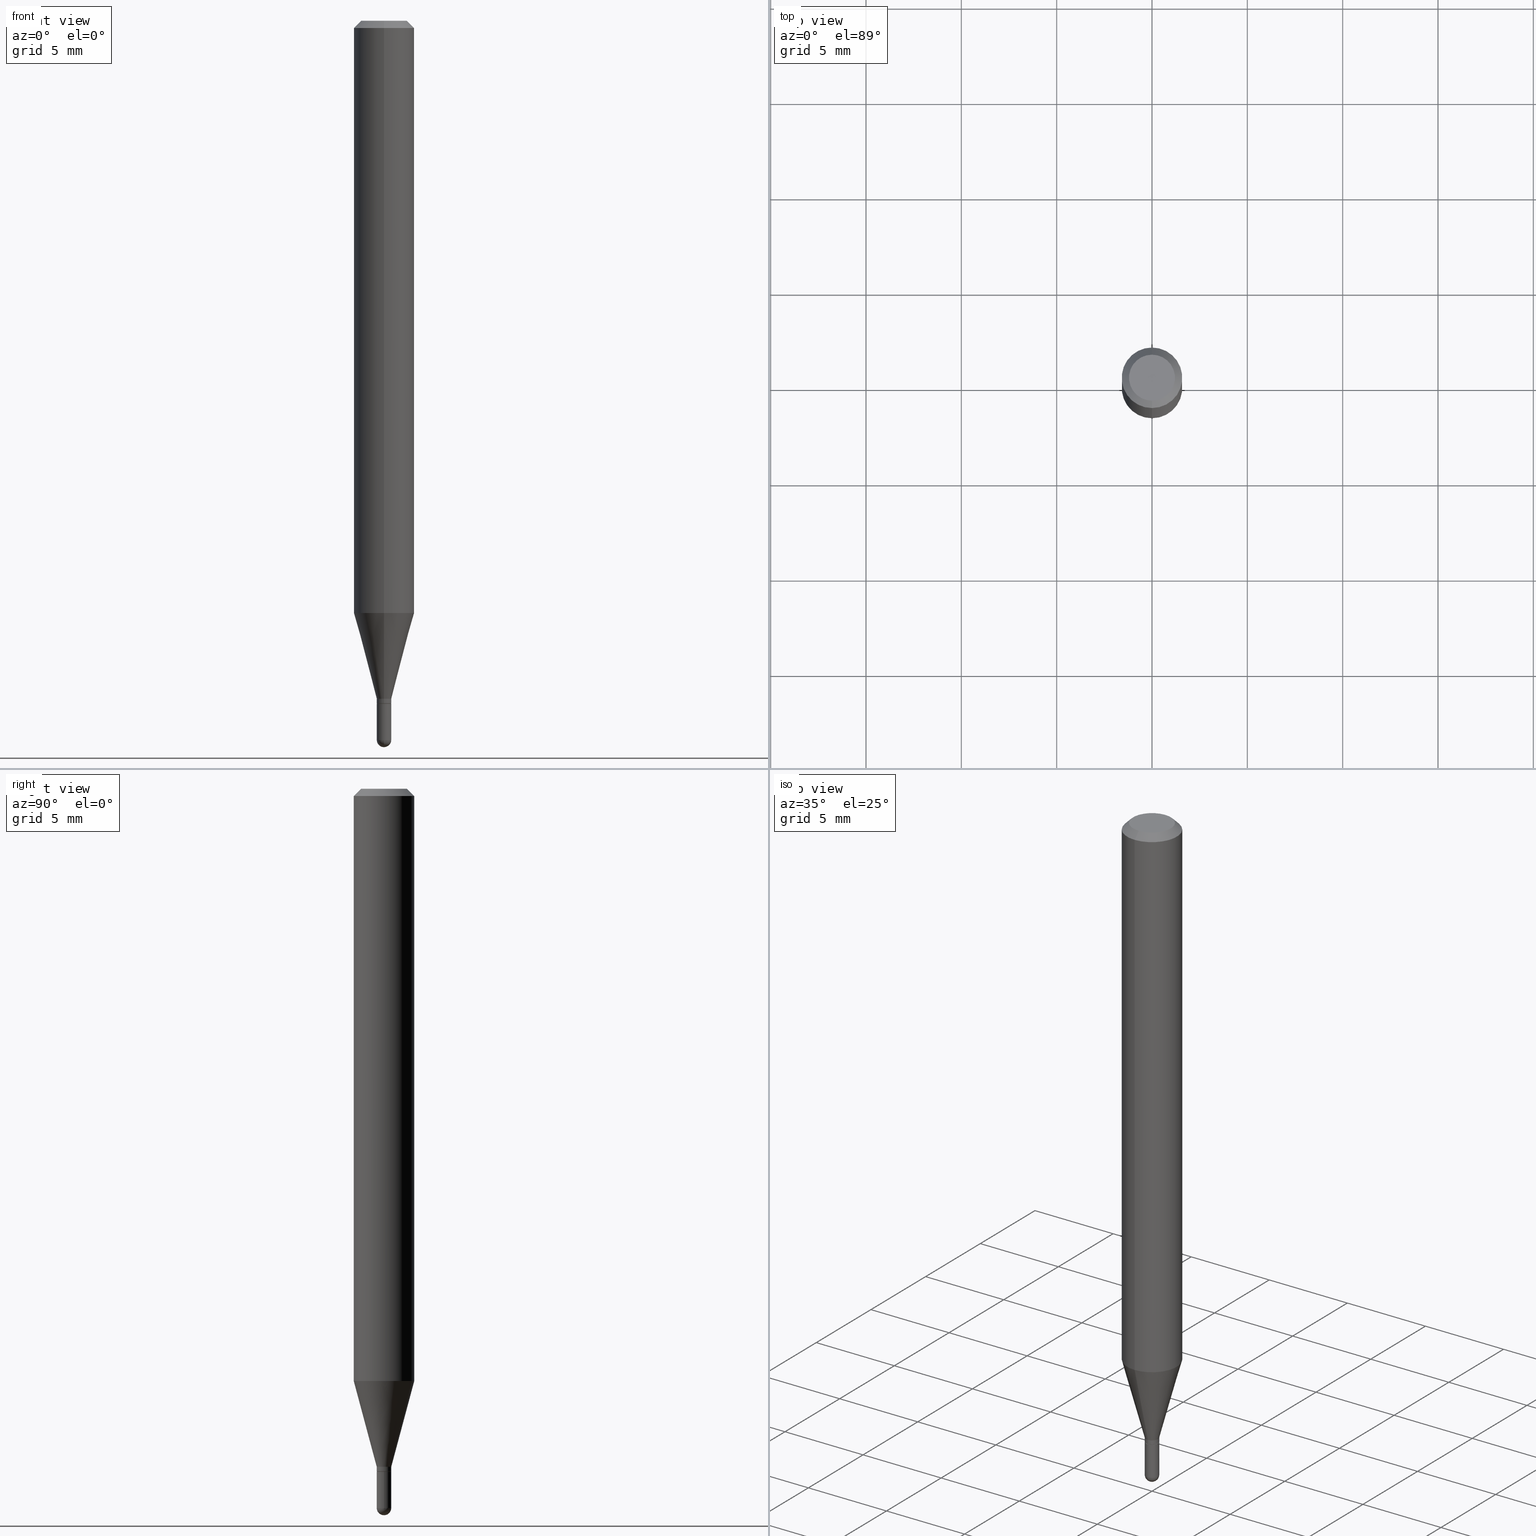
[diagram: canonical four-view strip — front | top / right | iso, engineering-drawing reading convention]
A machine part, canonical four-view strip (front | top / right | iso — engineering-drawing reading convention). The complete STEP part file that produces these views, byte-faithful:
ISO-10303-21;
HEADER;
FILE_DESCRIPTION (( 'STEP AP203' ),
    '1' );
FILE_NAME ('00907.STEP',
    '2024-03-07T18:48:46',
    ( '' ),
    ( '' ),
    'SwSTEP 2.0',
    'SolidWorks 2023',
    '' );
FILE_SCHEMA (( 'CONFIG_CONTROL_DESIGN' ));
ENDSEC;

DATA;
#1 = EDGE_CURVE ( 'NONE', #212, #137, #240, .T. ) ;
#2 = DIRECTION ( 'NONE',  ( -2.445465743271904969E-29, 3.491485725109223553E-15, 1.000000000000000000 ) ) ;
#3 = CIRCLE ( 'NONE', #396, 0.01499999999999998904 ) ;
#4 = EDGE_CURVE ( 'NONE', #329, #88, #469, .T. ) ;
#5 = DIRECTION ( 'NONE',  ( 6.982962677686265922E-15, 1.000000000000000000, 0.000000000000000000 ) ) ;
#6 = DIRECTION ( 'NONE',  ( 6.982962677686265922E-15, 1.000000000000000000, -3.483106191921935554E-15 ) ) ;
#7 = CYLINDRICAL_SURFACE ( 'NONE', #313, 0.01500000000000000291 ) ;
#8 = EDGE_LOOP ( 'NONE', ( #338, #24, #200, #406 ) ) ;
#9 = ORIENTED_EDGE ( 'NONE', *, *, #111, .T. ) ;
#10 = AXIS2_PLACEMENT_3D ( 'NONE', #121, #468, #268 ) ;
#11 = AXIS2_PLACEMENT_3D ( 'NONE', #289, #331, #291 ) ;
#12 = CARTESIAN_POINT ( 'NONE',  ( -4.364351673553916201E-16, -0.06250000000000000000, 2.182178578193264721E-16 ) ) ;
#13 = EDGE_LOOP ( 'NONE', ( #486, #165, #384, #345, #257 ) ) ;
#14 = DIRECTION ( 'NONE',  ( -2.445465743271904969E-29, 3.491485725109223553E-15, 1.000000000000000000 ) ) ;
#15 = DATE_AND_TIME ( #295, #397 ) ;
#16 = EDGE_CURVE ( 'NONE', #374, #212, #372, .T. ) ;
#17 = ADVANCED_FACE ( 'NONE', ( #302 ), #457, .T. ) ;
#18 = AXIS2_PLACEMENT_3D ( 'NONE', #273, #432, #474 ) ;
#19 = PRODUCT_DEFINITION_FORMATION_WITH_SPECIFIED_SOURCE ( 'ANY', '', #215, .NOT_KNOWN. ) ;
#20 = CARTESIAN_POINT ( 'NONE',  ( 2.166709852925074545E-46, -3.093495193197750632E-32, -8.860111244192406634E-18 ) ) ;
#21 = DIRECTION ( 'NONE',  ( 1.839019923739601499E-15, 0.2588190451025251249, 0.9659258262890670910 ) ) ;
#22 = DATE_AND_TIME ( #373, #445 ) ;
#23 = CARTESIAN_POINT ( 'NONE',  ( 3.423652040580666788E-29, -4.888080015152912343E-15, -1.400000000000000133 ) ) ;
#24 = ORIENTED_EDGE ( 'NONE', *, *, #198, .T. ) ;
#25 = APPROVAL_STATUS ( 'not_yet_approved' ) ;
#26 = DIRECTION ( 'NONE',  ( -2.445465743271904688E-29, 3.491485725109223553E-15, 1.000000000000000000 ) ) ;
#27 = DIRECTION ( 'NONE',  ( -6.982962677686265922E-15, -1.000000000000000000, 3.491485725109223553E-15 ) ) ;
#28 = CIRCLE ( 'NONE', #427, 0.01450000000000000074 ) ;
#29 = CC_DESIGN_APPROVAL ( #327, ( #459 ) ) ;
#30 = COORDINATED_UNIVERSAL_TIME_OFFSET ( 5, 0, .BEHIND. ) ;
#31 = LINE ( 'NONE', #371, #453 ) ;
#32 = ORIENTED_EDGE ( 'NONE', *, *, #472, .F. ) ;
#33 = CARTESIAN_POINT ( 'NONE',  ( 3.423652040580666788E-29, -4.888080015152912343E-15, -1.400000000000000133 ) ) ;
#34 = EDGE_LOOP ( 'NONE', ( #114, #9 ) ) ;
#35 = EDGE_CURVE ( 'NONE', #204, #65, #106, .T. ) ;
#36 = CYLINDRICAL_SURFACE ( 'NONE', #70, 0.01500000000000000291 ) ;
#37 = AXIS2_PLACEMENT_3D ( 'NONE', #233, #38, #394 ) ;
#38 = DIRECTION ( 'NONE',  ( -2.445468806185136597E-29, 3.491481338843145583E-15, 1.000000000000000000 ) ) ;
#39 = DIRECTION ( 'NONE',  ( 1.000000000000000000, -6.982962677686266711E-15, 4.876176775795935793E-29 ) ) ;
#40 = CARTESIAN_POINT ( 'NONE',  ( -1.047444401652592020E-16, -0.01500000000000480983, -1.400000000000000133 ) ) ;
#41 = ADVANCED_FACE ( 'NONE', ( #391 ), #414, .T. ) ;
#42 = EDGE_CURVE ( 'NONE', #88, #137, #430, .T. ) ;
#43 = DIRECTION ( 'NONE',  ( -4.937700262164674260E-15, -0.7071067811865632269, 0.7071067811865319186 ) ) ;
#44 = PLANE ( 'NONE',  #202 ) ;
#45 = DIRECTION ( 'NONE',  ( 6.982962677686265922E-15, 1.000000000000000000, 0.000000000000000000 ) ) ;
#46 = AXIS2_PLACEMENT_3D ( 'NONE', #422, #64, #380 ) ;
#47 = DIRECTION ( 'NONE',  ( -2.445465743271904969E-29, 3.491485725109223553E-15, 1.000000000000000000 ) ) ;
#48 = VERTEX_POINT ( 'NONE', #228 ) ;
#49 = DIRECTION ( 'NONE',  ( -2.445468806185136597E-29, 3.491481338843145583E-15, 1.000000000000000000 ) ) ;
#50 = ORIENTED_EDGE ( 'NONE', *, *, #42, .F. ) ;
#51 = ADVANCED_FACE ( 'NONE', ( #316 ), #44, .F. ) ;
#52 = DIRECTION ( 'NONE',  ( -1.000000000000000000, 6.982962677686265922E-15, -4.883557194083112340E-29 ) ) ;
#53 = ORIENTED_EDGE ( 'NONE', *, *, #4, .F. ) ;
#54 = CONICAL_SURFACE ( 'NONE', #408, 0.06250000000000000000, 0.7853981633974483900 ) ;
#55 = CARTESIAN_POINT ( 'NONE',  ( 3.630238427751159335E-29, -5.186686758380792456E-15, -1.485000000000000098 ) ) ;
#56 = DIRECTION ( 'NONE',  ( -2.445465743271904969E-29, 3.491485725109223553E-15, 1.000000000000000000 ) ) ;
#57 = APPROVAL_DATE_TIME ( #22, #327 ) ;
#58 = CARTESIAN_POINT ( 'NONE',  ( 1.065814103640485875E-16, 0.01499999999999495313, -1.409500000000000419 ) ) ;
#59 = EDGE_LOOP ( 'NONE', ( #225, #214, #400, #420 ) ) ;
#60 = AXIS2_PLACEMENT_3D ( 'NONE', #417, #421, #134 ) ;
#61 = APPLICATION_PROTOCOL_DEFINITION ( 'international standard', 'config_control_design', 1994, #487 ) ;
#62 = DIRECTION ( 'NONE',  ( -6.982962677686265133E-15, -1.000000000000000000, 0.000000000000000000 ) ) ;
#63 = VERTEX_POINT ( 'NONE', #507 ) ;
#64 = DIRECTION ( 'NONE',  ( -2.445468806185136597E-29, 3.491481338843145583E-15, 1.000000000000000000 ) ) ;
#65 = VERTEX_POINT ( 'NONE', #58 ) ;
#66 = APPROVAL ( #376, 'UNSPECIFIED' ) ;
#67 = PERSON_AND_ORGANIZATION ( #404, #333 ) ;
#68 = DIRECTION ( 'NONE',  ( -2.445468806185136877E-29, 3.491481338843145188E-15, 1.000000000000000000 ) ) ;
#69 = ORIENTED_EDGE ( 'NONE', *, *, #489, .F. ) ;
#70 = AXIS2_PLACEMENT_3D ( 'NONE', #349, #435, #39 ) ;
#71 = LINE ( 'NONE', #494, #444 ) ;
#72 = ORIENTED_EDGE ( 'NONE', *, *, #16, .T. ) ;
#73 = EDGE_CURVE ( 'NONE', #492, #63, #136, .T. ) ;
#74 = DIRECTION ( 'NONE',  ( -2.445465743271904969E-29, 3.491485725109223553E-15, 1.000000000000000000 ) ) ;
#75 = DIRECTION ( 'NONE',  ( -1.807323732225331323E-15, -0.2588190451025183525, 0.9659258262890689783 ) ) ;
#76 = DIRECTION ( 'NONE',  ( -1.000000000000000000, 7.105427357601001070E-15, -4.926315508542082329E-29 ) ) ;
#77 = APPROVAL_PERSON_ORGANIZATION ( #67, #66, #175 ) ;
#78 = DIMENSIONAL_EXPONENTS ( 1.000000000000000000, 0.000000000000000000, 0.000000000000000000, 0.000000000000000000, 0.000000000000000000, 0.000000000000000000, 0.000000000000000000 ) ;
#79 = DIRECTION ( 'NONE',  ( -2.445468806185136597E-29, 3.491481338843145583E-15, 1.000000000000000000 ) ) ;
#80 = FACE_OUTER_BOUND ( 'NONE', #443, .T. ) ;
#81 = CARTESIAN_POINT ( 'NONE',  ( 3.631521177184928138E-29, -5.184849788182071492E-15, -1.485000000000000098 ) ) ;
#82 = CARTESIAN_POINT ( 'NONE',  ( 3.448106698013386597E-29, -4.922994872404006141E-15, -1.410000000000000364 ) ) ;
#83 = ORIENTED_EDGE ( 'NONE', *, *, #124, .F. ) ;
#84 = CIRCLE ( 'NONE', #250, 0.06250000000000000000 ) ;
#85 = DIRECTION ( 'NONE',  ( -4.851104656540964275E-15, -0.7071067811865500152, -0.7071067811865450192 ) ) ;
#86 = EDGE_LOOP ( 'NONE', ( #83, #103, #403, #235 ) ) ;
#87 = ORIENTED_EDGE ( 'NONE', *, *, #438, .F. ) ;
#88 = VERTEX_POINT ( 'NONE', #254 ) ;
#89 = CIRCLE ( 'NONE', #320, 0.04749999999999999362 ) ;
#90 = CC_DESIGN_DATE_AND_TIME_ASSIGNMENT ( #15, #490, ( #459 ) ) ;
#91 = SECURITY_CLASSIFICATION ( '', '', #303 ) ;
#92 = ADVANCED_FACE ( 'NONE', ( #448 ), #173, .T. ) ;
#93 = DIRECTION ( 'NONE',  ( -6.982962677686265922E-15, -1.000000000000000000, 3.483106191921935554E-15 ) ) ;
#94 = APPROVAL_DATE_TIME ( #220, #66 ) ;
#95 = CARTESIAN_POINT ( 'NONE',  ( 3.668198614907860150E-31, -5.237228587663838510E-17, -0.01500000000000000812 ) ) ;
#96 = CLOSED_SHELL ( 'NONE', ( #398, #354, #191, #17, #138, #171, #284, #41, #238, #237, #479, #92 ) ) ;
#97 = CIRCLE ( 'NONE', #351, 0.01500000000000000291 ) ;
#98 = ORIENTED_EDGE ( 'NONE', *, *, #318, .T. ) ;
#99 = PERSON_AND_ORGANIZATION ( #404, #333 ) ;
#100 = CC_DESIGN_PERSON_AND_ORGANIZATION_ASSIGNMENT ( #493, #343, ( #215 ) ) ;
#101 = FACE_OUTER_BOUND ( 'NONE', #8, .T. ) ;
#102 = EDGE_CURVE ( 'NONE', #342, #350, #31, .T. ) ;
#103 = ORIENTED_EDGE ( 'NONE', *, *, #1, .T. ) ;
#104 = APPROVAL_STATUS ( 'not_yet_approved' ) ;
#105 = FACE_OUTER_BOUND ( 'NONE', #34, .T. ) ;
#106 = LINE ( 'NONE', #223, #207 ) ;
#107 = PERSON_AND_ORGANIZATION_ROLE ( 'design_supplier' ) ;
#108 = CARTESIAN_POINT ( 'NONE',  ( 3.423652040580666788E-29, -4.888080015152912343E-15, -1.400000000000000133 ) ) ;
#109 = ORIENTED_EDGE ( 'NONE', *, *, #4, .T. ) ;
#110 = AXIS2_PLACEMENT_3D ( 'NONE', #506, #192, #429 ) ;
#111 = EDGE_CURVE ( 'NONE', #393, #365, #89, .T. ) ;
#112 = LOCAL_TIME ( 13, 48, 46.00000000000000000, #336 ) ;
#113 = FACE_OUTER_BOUND ( 'NONE', #59, .T. ) ;
#114 = ORIENTED_EDGE ( 'NONE', *, *, #157, .T. ) ;
#115 = SPHERICAL_SURFACE ( 'NONE', #153, 0.01499999999999998904 ) ;
#116 = ORIENTED_EDGE ( 'NONE', *, *, #433, .T. ) ;
#117 = CARTESIAN_POINT ( 'NONE',  ( 3.667561834560821335E-29, -5.238140493364078659E-15, -1.500000000000000222 ) ) ;
#118 = AXIS2_PLACEMENT_3D ( 'NONE', #23, #425, #334 ) ;
#119 = CIRCLE ( 'NONE', #180, 0.01499999999999992312 ) ;
#120 = CYLINDRICAL_SURFACE ( 'NONE', #10, 0.01499999999999992485 ) ;
#121 = CARTESIAN_POINT ( 'NONE',  ( 0.000000000000000000, 0.000000000000000000, 0.000000000000000000 ) ) ;
#122 = CARTESIAN_POINT ( 'NONE',  ( 4.364351673553919652E-16, 0.06249999999999995143, -0.01500000000000022669 ) ) ;
#123 = ORIENTED_EDGE ( 'NONE', *, *, #401, .F. ) ;
#124 = EDGE_CURVE ( 'NONE', #212, #297, #71, .T. ) ;
#125 = VECTOR ( 'NONE', #75, 39.37007874015748854 ) ;
#126 =( CONVERSION_BASED_UNIT ( 'INCH', #285 ) LENGTH_UNIT ( ) NAMED_UNIT ( #78 ) );
#127 = EDGE_LOOP ( 'NONE', ( #363, #72, #266, #50 ) ) ;
#128 = ORIENTED_EDGE ( 'NONE', *, *, #219, .F. ) ;
#129 = CC_DESIGN_PERSON_AND_ORGANIZATION_ASSIGNMENT ( #216, #262, ( #91 ) ) ;
#130 = ORIENTED_EDGE ( 'NONE', *, *, #409, .F. ) ;
#131 =( NAMED_UNIT ( * ) PLANE_ANGLE_UNIT ( ) SI_UNIT ( $, .RADIAN. ) );
#132 = VECTOR ( 'NONE', #341, 39.37007874015748143 ) ;
#133 = VECTOR ( 'NONE', #14, 39.37007874015748143 ) ;
#134 = DIRECTION ( 'NONE',  ( 1.000000000000000000, 0.000000000000000000, 0.000000000000000000 ) ) ;
#135 = CARTESIAN_POINT ( 'NONE',  ( 4.440892098500922971E-16, 0.06249999999999571176, -1.222727586640479203 ) ) ;
#136 = LINE ( 'NONE', #294, #132 ) ;
#137 = VERTEX_POINT ( 'NONE', #491 ) ;
#138 = ADVANCED_FACE ( 'NONE', ( #224 ), #209, .T. ) ;
#139 = APPROVAL_ROLE ( '' ) ;
#140 = CARTESIAN_POINT ( 'NONE',  ( 1.047444401653302611E-16, 0.01499999999999481089, -1.485000000000000098 ) ) ;
#141 = ORIENTED_EDGE ( 'NONE', *, *, #198, .F. ) ;
#142 = DIRECTION ( 'NONE',  ( -6.982962677686265922E-15, -1.000000000000000000, 3.491485725109223553E-15 ) ) ;
#143 = VERTEX_POINT ( 'NONE', #140 ) ;
#144 = DATE_AND_TIME ( #424, #370 ) ;
#145 = DIRECTION ( 'NONE',  ( 5.024295867788190974E-15, 0.7071067811865681119, 0.7071067811865270336 ) ) ;
#146 = CARTESIAN_POINT ( 'NONE',  ( -1.012529588264163675E-16, -0.01450000000000492388, -1.410000000000000364 ) ) ;
#147 = ORIENTED_EDGE ( 'NONE', *, *, #346, .F. ) ;
#148 = AXIS2_PLACEMENT_3D ( 'NONE', #218, #377, #27 ) ;
#149 = LOCAL_TIME ( 13, 48, 46.00000000000000000, #339 ) ;
#150 = LINE ( 'NONE', #478, #247 ) ;
#151 = CARTESIAN_POINT ( 'NONE',  ( 2.753353101070707689E-16, 0.01499999999999503640, -1.400000000000000133 ) ) ;
#152 = DIRECTION ( 'NONE',  ( -2.445468806185136597E-29, 3.491481338843145583E-15, 1.000000000000000000 ) ) ;
#153 = AXIS2_PLACEMENT_3D ( 'NONE', #239, #355, #45 ) ;
#154 = CARTESIAN_POINT ( 'NONE',  ( 3.840629472727447874E-16, 0.04749999999999999362, -1.747056831868805136E-16 ) ) ;
#155 = CARTESIAN_POINT ( 'NONE',  ( 1.047444401653284739E-16, 0.01499999999999507630, -1.410000000000000364 ) ) ;
#156 = DIRECTION ( 'NONE',  ( 1.000000000000000000, -6.982962677686266711E-15, 4.876176775795935793E-29 ) ) ;
#157 = EDGE_CURVE ( 'NONE', #365, #393, #210, .T. ) ;
#158 = SPHERICAL_SURFACE ( 'NONE', #168, 0.01499999999999998904 ) ;
#159 = ORIENTED_EDGE ( 'NONE', *, *, #157, .F. ) ;
#160 = AXIS2_PLACEMENT_3D ( 'NONE', #471, #511, #6 ) ;
#161 = CIRCLE ( 'NONE', #299, 0.01499999999999998904 ) ;
#162 = CARTESIAN_POINT ( 'NONE',  ( 0.000000000000000000, 0.000000000000000000, 0.000000000000000000 ) ) ;
#163 = ORIENTED_EDGE ( 'NONE', *, *, #219, .T. ) ;
#164 = FACE_OUTER_BOUND ( 'NONE', #269, .T. ) ;
#165 = ORIENTED_EDGE ( 'NONE', *, *, #73, .T. ) ;
#166 = VECTOR ( 'NONE', #21, 39.37007874015748854 ) ;
#167 = CIRCLE ( 'NONE', #18, 0.01499999999999999944 ) ;
#168 = AXIS2_PLACEMENT_3D ( 'NONE', #199, #52, #279 ) ;
#169 = CARTESIAN_POINT ( 'NONE',  ( 3.448106698013386597E-29, -4.922994872404006141E-15, -1.410000000000000364 ) ) ;
#170 = CARTESIAN_POINT ( 'NONE',  ( -1.047444401652934559E-16, -0.01499999999999992485, 5.237228587663808927E-17 ) ) ;
#171 = ADVANCED_FACE ( 'NONE', ( #101 ), #310, .T. ) ;
#172 = CALENDAR_DATE ( 2024, 7, 3 ) ;
#173 = CYLINDRICAL_SURFACE ( 'NONE', #415, 0.01499999999999992485 ) ;
#174 = CARTESIAN_POINT ( 'NONE',  ( 2.990138426482821198E-29, -4.269135914452482936E-15, -1.222727586640478759 ) ) ;
#175 = APPROVAL_ROLE ( '' ) ;
#176 = CARTESIAN_POINT ( 'NONE',  ( 3.448106698013386597E-29, -4.922994872404006141E-15, -1.410000000000000364 ) ) ;
#177 = VECTOR ( 'NONE', #179, 39.37007874015748143 ) ;
#178 = CIRCLE ( 'NONE', #46, 0.01500000000000000291 ) ;
#179 = DIRECTION ( 'NONE',  ( -2.445465743271904969E-29, 3.491485725109223553E-15, 1.000000000000000000 ) ) ;
#180 = AXIS2_PLACEMENT_3D ( 'NONE', #359, #399, #439 ) ;
#181 = EDGE_CURVE ( 'NONE', #244, #204, #28, .T. ) ;
#182 = CARTESIAN_POINT ( 'NONE',  ( 2.166709852925074545E-46, -3.093495193197750632E-32, -8.860111244192406634E-18 ) ) ;
#183 = EDGE_LOOP ( 'NONE', ( #290, #163, #499, #264, #441 ) ) ;
#184 = DIRECTION ( 'NONE',  ( -2.445465743271904969E-29, 3.491485725109223553E-15, 1.000000000000000000 ) ) ;
#185 = ORIENTED_EDGE ( 'NONE', *, *, #461, .T. ) ;
#186 = DESIGN_CONTEXT ( 'detailed design', #487, 'design' ) ;
#187 = LINE ( 'NONE', #146, #241 ) ;
#188 = CIRCLE ( 'NONE', #280, 0.01500000000000000291 ) ;
#189 = VECTOR ( 'NONE', #251, 39.37007874015748143 ) ;
#190 = DIRECTION ( 'NONE',  ( -2.445465743271904969E-29, 3.491485725109223553E-15, 1.000000000000000000 ) ) ;
#191 = ADVANCED_FACE ( 'NONE', ( #451 ), #54, .T. ) ;
#192 = DIRECTION ( 'NONE',  ( -2.445465743271904969E-29, 3.491485725109223553E-15, 1.000000000000000000 ) ) ;
#193 = CARTESIAN_POINT ( 'NONE',  ( 0.01500000000000000291, -5.158663678140747361E-15, -1.485000000000000098 ) ) ;
#194 = ORIENTED_EDGE ( 'NONE', *, *, #489, .T. ) ;
#195 = CIRCLE ( 'NONE', #496, 0.01499999999999992312 ) ;
#196 = VECTOR ( 'NONE', #85, 39.37007874015748143 ) ;
#197 = FACE_OUTER_BOUND ( 'NONE', #308, .T. ) ;
#198 = EDGE_CURVE ( 'NONE', #374, #88, #195, .T. ) ;
#199 = CARTESIAN_POINT ( 'NONE',  ( 3.630238427751159335E-29, -5.186686758380792456E-15, -1.485000000000000098 ) ) ;
#200 = ORIENTED_EDGE ( 'NONE', *, *, #42, .T. ) ;
#201 = ORIENTED_EDGE ( 'NONE', *, *, #260, .T. ) ;
#202 = AXIS2_PLACEMENT_3D ( 'NONE', #155, #352, #323 ) ;
#203 = DIRECTION ( 'NONE',  ( -2.445465743271904969E-29, 3.491485725109223553E-15, 1.000000000000000000 ) ) ;
#204 = VERTEX_POINT ( 'NONE', #259 ) ;
#205 = APPROVAL_PERSON_ORGANIZATION ( #298, #276, #139 ) ;
#206 = LINE ( 'NONE', #122, #189 ) ;
#207 = VECTOR ( 'NONE', #145, 39.37007874015748143 ) ;
#208 = DATE_TIME_ROLE ( 'classification_date' ) ;
#209 = CONICAL_SURFACE ( 'NONE', #118, 0.01499999999999992312, 0.2617993877991504625 ) ;
#210 = CIRCLE ( 'NONE', #488, 0.04749999999999999362 ) ;
#211 = CARTESIAN_POINT ( 'NONE',  ( 0.000000000000000000, 0.000000000000000000, 0.000000000000000000 ) ) ;
#212 = VERTEX_POINT ( 'NONE', #135 ) ;
#213 = APPROVAL_ROLE ( '' ) ;
#214 = ORIENTED_EDGE ( 'NONE', *, *, #35, .T. ) ;
#215 = PRODUCT ( '00907', '00907', '', ( #412 ) ) ;
#216 = PERSON_AND_ORGANIZATION ( #404, #333 ) ;
#217 = PLANE ( 'NONE',  #466 ) ;
#218 = CARTESIAN_POINT ( 'NONE',  ( 0.000000000000000000, 0.000000000000000000, 0.000000000000000000 ) ) ;
#219 = EDGE_CURVE ( 'NONE', #492, #245, #178, .T. ) ;
#220 = DATE_AND_TIME ( #497, #149 ) ;
#221 = DIRECTION ( 'NONE',  ( -2.445465743271904969E-29, 3.491485725109223553E-15, 1.000000000000000000 ) ) ;
#222 = CONICAL_SURFACE ( 'NONE', #231, 0.01450000000000000074, 0.7853981633974739252 ) ;
#223 = CARTESIAN_POINT ( 'NONE',  ( 1.030286966852489955E-16, 0.01449999999999507759, -1.410000000000000364 ) ) ;
#224 = FACE_OUTER_BOUND ( 'NONE', #127, .T. ) ;
#225 = ORIENTED_EDGE ( 'NONE', *, *, #181, .T. ) ;
#226 = DIRECTION ( 'NONE',  ( 1.000000000000000000, -6.982962677686266711E-15, 0.000000000000000000 ) ) ;
#227 = ORIENTED_EDGE ( 'NONE', *, *, #472, .T. ) ;
#228 = CARTESIAN_POINT ( 'NONE',  ( -4.364351673553912750E-16, -0.06250000000000005551, -0.01499999999999979128 ) ) ;
#229 = CC_DESIGN_PERSON_AND_ORGANIZATION_ASSIGNMENT ( #99, #258, ( #19 ) ) ;
#230 = DIRECTION ( 'NONE',  ( -7.105427357601001070E-15, -1.000000000000000000, 0.000000000000000000 ) ) ;
#231 = AXIS2_PLACEMENT_3D ( 'NONE', #319, #2, #272 ) ;
#232 = PRODUCT_RELATED_PRODUCT_CATEGORY ( 'detail', '', ( #215 ) ) ;
#233 = CARTESIAN_POINT ( 'NONE',  ( 3.448111016721043229E-29, -4.922988687768836490E-15, -1.410000000000000364 ) ) ;
#234 = DIRECTION ( 'NONE',  ( 1.000000000000000000, -6.982962677686266711E-15, 0.000000000000000000 ) ) ;
#235 = ORIENTED_EDGE ( 'NONE', *, *, #508, .F. ) ;
#236 = MANIFOLD_SOLID_BREP ( 'Body-Move/Copy2[2]', #96 ) ;
#237 = ADVANCED_FACE ( 'NONE', ( #304 ), #217, .F. ) ;
#238 = ADVANCED_FACE ( 'NONE', ( #105 ), #460, .F. ) ;
#239 = CARTESIAN_POINT ( 'NONE',  ( 3.630238427751159335E-29, -5.186686758380792456E-15, -1.485000000000000098 ) ) ;
#240 = CIRCLE ( 'NONE', #407, 0.06250000000000000000 ) ;
#241 = VECTOR ( 'NONE', #43, 39.37007874015748143 ) ;
#242 = DIRECTION ( 'NONE',  ( 1.000000000000000000, -6.982962677686266711E-15, 0.000000000000000000 ) ) ;
#243 = EDGE_LOOP ( 'NONE', ( #462, #116, #109, #141 ) ) ;
#244 = VERTEX_POINT ( 'NONE', #265 ) ;
#245 = VERTEX_POINT ( 'NONE', #434 ) ;
#246 = EDGE_CURVE ( 'NONE', #204, #244, #504, .T. ) ;
#247 = VECTOR ( 'NONE', #190, 39.37007874015748143 ) ;
#248 = FACE_OUTER_BOUND ( 'NONE', #183, .T. ) ;
#249 = ORIENTED_EDGE ( 'NONE', *, *, #508, .T. ) ;
#250 = AXIS2_PLACEMENT_3D ( 'NONE', #402, #56, #358 ) ;
#251 = DIRECTION ( 'NONE',  ( 4.937700262164548042E-15, 0.7071067811865451302, -0.7071067811865499042 ) ) ;
#252 = MANIFOLD_SOLID_BREP ( 'Body-Move/Copy2[1]', #395 ) ;
#253 = SHAPE_DEFINITION_REPRESENTATION ( #301, #288 ) ;
#254 = CARTESIAN_POINT ( 'NONE',  ( -1.047444401652592020E-16, -0.01500000000000480983, -1.400000000000000133 ) ) ;
#255 = PERSON_AND_ORGANIZATION ( #404, #333 ) ;
#256 = DIRECTION ( 'NONE',  ( 2.445465743271904969E-29, -3.491485725109223553E-15, -1.000000000000000000 ) ) ;
#257 = ORIENTED_EDGE ( 'NONE', *, *, #346, .T. ) ;
#258 = PERSON_AND_ORGANIZATION_ROLE ( 'creator' ) ;
#259 = CARTESIAN_POINT ( 'NONE',  ( 1.048050535246489641E-16, 0.01449999999999507759, -1.410000000000000364 ) ) ;
#260 = EDGE_CURVE ( 'NONE', #65, #374, #150, .T. ) ;
#261 = ORIENTED_EDGE ( 'NONE', *, *, #401, .T. ) ;
#262 = PERSON_AND_ORGANIZATION_ROLE ( 'classification_officer' ) ;
#263 = DIRECTION ( 'NONE',  ( -2.445465743271904969E-29, 3.491485725109223553E-15, 1.000000000000000000 ) ) ;
#264 = ORIENTED_EDGE ( 'NONE', *, *, #102, .T. ) ;
#265 = CARTESIAN_POINT ( 'NONE',  ( -1.012529588264163675E-16, -0.01450000000000492388, -1.410000000000000364 ) ) ;
#266 = ORIENTED_EDGE ( 'NONE', *, *, #292, .F. ) ;
#267 = AXIS2_PLACEMENT_3D ( 'NONE', #82, #47, #480 ) ;
#268 = DIRECTION ( 'NONE',  ( -6.982962677686265133E-15, -1.000000000000000000, 3.491485725109223553E-15 ) ) ;
#269 = EDGE_LOOP ( 'NONE', ( #386, #283, #503, #484 ) ) ;
#270 = CC_DESIGN_PERSON_AND_ORGANIZATION_ASSIGNMENT ( #255, #107, ( #19 ) ) ;
#271 = ADVANCED_FACE ( 'NONE', ( #278 ), #36, .T. ) ;
#272 = DIRECTION ( 'NONE',  ( -6.982962677686265922E-15, -1.000000000000000000, 0.000000000000000000 ) ) ;
#273 = CARTESIAN_POINT ( 'NONE',  ( 3.448111016721043229E-29, -4.922988687768836490E-15, -1.410000000000000364 ) ) ;
#274 = AXIS2_PLACEMENT_3D ( 'NONE', #33, #221, #413 ) ;
#275 = CARTESIAN_POINT ( 'NONE',  ( 3.448106698013386597E-29, -4.922994872404006141E-15, -1.410000000000000364 ) ) ;
#276 = APPROVAL ( #25, 'UNSPECIFIED' ) ;
#277 = EDGE_CURVE ( 'NONE', #245, #342, #97, .T. ) ;
#278 = FACE_OUTER_BOUND ( 'NONE', #13, .T. ) ;
#279 = DIRECTION ( 'NONE',  ( 6.982962677686265922E-15, 1.000000000000000000, 0.000000000000000000 ) ) ;
#280 = AXIS2_PLACEMENT_3D ( 'NONE', #509, #152, #226 ) ;
#281 = CC_DESIGN_SECURITY_CLASSIFICATION ( #91, ( #19 ) ) ;
#282 = DIRECTION ( 'NONE',  ( 1.000000000000000000, -6.982962677686265922E-15, 4.883557194083112340E-29 ) ) ;
#283 = ORIENTED_EDGE ( 'NONE', *, *, #246, .T. ) ;
#284 = ADVANCED_FACE ( 'NONE', ( #385 ), #315, .T. ) ;
#285 = LENGTH_MEASURE_WITH_UNIT ( LENGTH_MEASURE( 0.02539999999999999897 ), #482 );
#286 = EDGE_LOOP ( 'NONE', ( #426, #428 ) ) ;
#287 = EDGE_CURVE ( 'NONE', #244, #329, #187, .T. ) ;
#288 = ADVANCED_BREP_SHAPE_REPRESENTATION ( '00907', ( #252, #236, #60 ), #467 ) ;
#289 = CARTESIAN_POINT ( 'NONE',  ( 3.446883965141751027E-29, -4.921249129541451135E-15, -1.409500000000000419 ) ) ;
#290 = ORIENTED_EDGE ( 'NONE', *, *, #73, .F. ) ;
#291 = DIRECTION ( 'NONE',  ( -6.982962677686265133E-15, -1.000000000000000000, 0.000000000000000000 ) ) ;
#292 = EDGE_CURVE ( 'NONE', #137, #212, #388, .T. ) ;
#293 = PERSON_AND_ORGANIZATION ( #404, #333 ) ;
#294 = CARTESIAN_POINT ( 'NONE',  ( -0.01500000000000000291, 1.065814103640150486E-16, -7.378402635382359408E-31 ) ) ;
#295 = CALENDAR_DATE ( 2024, 7, 3 ) ;
#296 = DIRECTION ( 'NONE',  ( -2.445465743271904969E-29, 3.491485725109223553E-15, 1.000000000000000000 ) ) ;
#297 = VERTEX_POINT ( 'NONE', #387 ) ;
#298 = PERSON_AND_ORGANIZATION ( #404, #333 ) ;
#299 = AXIS2_PLACEMENT_3D ( 'NONE', #55, #282, #5 ) ;
#300 = DIRECTION ( 'NONE',  ( -2.445465743271904969E-29, 3.491485725109223553E-15, 1.000000000000000000 ) ) ;
#301 = PRODUCT_DEFINITION_SHAPE ( 'NONE', 'NONE',  #459 ) ;
#302 = FACE_OUTER_BOUND ( 'NONE', #305, .T. ) ;
#303 = SECURITY_CLASSIFICATION_LEVEL ( 'unclassified' ) ;
#304 = FACE_OUTER_BOUND ( 'NONE', #286, .T. ) ;
#305 = EDGE_LOOP ( 'NONE', ( #475, #452, #32, #481 ) ) ;
#306 = PERSON_AND_ORGANIZATION ( #404, #333 ) ;
#307 = DIRECTION ( 'NONE',  ( 2.445465743271904688E-29, -3.491485725109223553E-15, -1.000000000000000000 ) ) ;
#308 = EDGE_LOOP ( 'NONE', ( #98, #201, #87, #53 ) ) ;
#309 = DIRECTION ( 'NONE',  ( -6.982962677686265922E-15, -1.000000000000000000, 4.370956789862821150E-15 ) ) ;
#310 = CONICAL_SURFACE ( 'NONE', #274, 0.01499999999999992312, 0.2617993877991504625 ) ;
#311 = DIRECTION ( 'NONE',  ( -2.445465743271904969E-29, 3.491485725109223553E-15, 1.000000000000000000 ) ) ;
#312 = EDGE_CURVE ( 'NONE', #63, #350, #357, .T. ) ;
#313 = AXIS2_PLACEMENT_3D ( 'NONE', #162, #49, #156 ) ;
#314 = ADVANCED_FACE ( 'NONE', ( #80 ), #115, .T. ) ;
#315 = CYLINDRICAL_SURFACE ( 'NONE', #110, 0.06250000000000000000 ) ;
#316 = FACE_OUTER_BOUND ( 'NONE', #330, .T. ) ;
#317 = DIRECTION ( 'NONE',  ( -6.982962677686265133E-15, -1.000000000000000000, 0.000000000000000000 ) ) ;
#318 = EDGE_CURVE ( 'NONE', #329, #65, #369, .T. ) ;
#319 = CARTESIAN_POINT ( 'NONE',  ( 3.448106698013386597E-29, -4.922994872404006141E-15, -1.410000000000000364 ) ) ;
#320 = AXIS2_PLACEMENT_3D ( 'NONE', #20, #347, #500 ) ;
#321 = CC_DESIGN_APPROVAL ( #276, ( #19 ) ) ;
#322 = CARTESIAN_POINT ( 'NONE',  ( -3.773273898774340269E-16, -0.04749999999999999362, 1.569854606984956973E-16 ) ) ;
#323 = DIRECTION ( 'NONE',  ( -1.000000000000000000, 6.982962677686265922E-15, -4.876176775795935793E-29 ) ) ;
#324 = CARTESIAN_POINT ( 'NONE',  ( -4.287811248607203282E-16, -0.06250000000000005551, -0.01499999999999979128 ) ) ;
#325 = LINE ( 'NONE', #324, #196 ) ;
#326 = ORIENTED_EDGE ( 'NONE', *, *, #375, .T. ) ;
#327 = APPROVAL ( #104, 'UNSPECIFIED' ) ;
#328 = DIRECTION ( 'NONE',  ( -2.445468806185136597E-29, 3.491481338843145583E-15, 1.000000000000000000 ) ) ;
#329 = VERTEX_POINT ( 'NONE', #502 ) ;
#330 = EDGE_LOOP ( 'NONE', ( #483, #381 ) ) ;
#331 = DIRECTION ( 'NONE',  ( -2.445465743271904969E-29, 3.491485725109223553E-15, 1.000000000000000000 ) ) ;
#332 = AXIS2_PLACEMENT_3D ( 'NONE', #344, #307, #464 ) ;
#333 = ORGANIZATION ( 'UNSPECIFIED', 'UNSPECIFIED', '' ) ;
#334 = DIRECTION ( 'NONE',  ( -6.982962677686265133E-15, -1.000000000000000000, 0.000000000000000000 ) ) ;
#335 = ORIENTED_EDGE ( 'NONE', *, *, #375, .F. ) ;
#336 = COORDINATED_UNIVERSAL_TIME_OFFSET ( 5, 0, .BEHIND. ) ;
#337 = DIRECTION ( 'NONE',  ( -2.445465743271904969E-29, 3.491485725109223553E-15, 1.000000000000000000 ) ) ;
#338 = ORIENTED_EDGE ( 'NONE', *, *, #16, .F. ) ;
#339 = COORDINATED_UNIVERSAL_TIME_OFFSET ( 5, 0, .BEHIND. ) ;
#340 = CIRCLE ( 'NONE', #477, 0.06250000000000000000 ) ;
#341 = DIRECTION ( 'NONE',  ( -2.445468806185136877E-29, 3.491481338843145188E-15, 1.000000000000000000 ) ) ;
#342 = VERTEX_POINT ( 'NONE', #193 ) ;
#343 = PERSON_AND_ORGANIZATION_ROLE ( 'design_owner' ) ;
#344 = CARTESIAN_POINT ( 'NONE',  ( 3.316907271900976096E-16, 0.04749999999999999362, -1.702756275647842911E-16 ) ) ;
#345 = ORIENTED_EDGE ( 'NONE', *, *, #102, .F. ) ;
#346 = EDGE_CURVE ( 'NONE', #342, #143, #188, .T. ) ;
#347 = DIRECTION ( 'NONE',  ( -2.445465743271904969E-29, 3.491485725109223553E-15, 1.000000000000000000 ) ) ;
#348 = ORIENTED_EDGE ( 'NONE', *, *, #461, .F. ) ;
#349 = CARTESIAN_POINT ( 'NONE',  ( 0.000000000000000000, 0.000000000000000000, 0.000000000000000000 ) ) ;
#350 = VERTEX_POINT ( 'NONE', #356 ) ;
#351 = AXIS2_PLACEMENT_3D ( 'NONE', #81, #79, #234 ) ;
#352 = DIRECTION ( 'NONE',  ( 2.438088387897960049E-29, -3.491481338843145188E-15, -1.000000000000000000 ) ) ;
#353 = EDGE_LOOP ( 'NONE', ( #348, #159, #194, #249 ) ) ;
#354 = ADVANCED_FACE ( 'NONE', ( #113 ), #222, .T. ) ;
#355 = DIRECTION ( 'NONE',  ( -1.000000000000000000, 6.982962677686265922E-15, -4.883557194083112340E-29 ) ) ;
#356 = CARTESIAN_POINT ( 'NONE',  ( 0.01499999999999999944, -5.027733127934130649E-15, -1.410000000000000364 ) ) ;
#357 = CIRCLE ( 'NONE', #37, 0.01499999999999999944 ) ;
#358 = DIRECTION ( 'NONE',  ( -6.982962677686265922E-15, -1.000000000000000000, 3.483106191921935554E-15 ) ) ;
#359 = CARTESIAN_POINT ( 'NONE',  ( 3.423652040580666788E-29, -4.888080015152912343E-15, -1.400000000000000133 ) ) ;
#360 = VERTEX_POINT ( 'NONE', #117 ) ;
#361 = CC_DESIGN_PERSON_AND_ORGANIZATION_ASSIGNMENT ( #293, #368, ( #459 ) ) ;
#362 =( NAMED_UNIT ( * ) SI_UNIT ( $, .STERADIAN. ) SOLID_ANGLE_UNIT ( ) );
#363 = ORIENTED_EDGE ( 'NONE', *, *, #438, .T. ) ;
#364 = CIRCLE ( 'NONE', #389, 0.01500000000000000291 ) ;
#365 = VERTEX_POINT ( 'NONE', #154 ) ;
#366 = CARTESIAN_POINT ( 'NONE',  ( -0.01500000000000000291, -4.947337827611438869E-15, -1.485000000000000098 ) ) ;
#367 = CC_DESIGN_DATE_AND_TIME_ASSIGNMENT ( #144, #208, ( #91 ) ) ;
#368 = PERSON_AND_ORGANIZATION_ROLE ( 'creator' ) ;
#369 = CIRCLE ( 'NONE', #440, 0.01499999999999992485 ) ;
#370 = LOCAL_TIME ( 13, 48, 46.00000000000000000, #450 ) ;
#371 = CARTESIAN_POINT ( 'NONE',  ( 0.01500000000000000291, -1.047444401652940228E-16, 7.314265163693905266E-31 ) ) ;
#372 = LINE ( 'NONE', #495, #166 ) ;
#373 = CALENDAR_DATE ( 2024, 7, 3 ) ;
#374 = VERTEX_POINT ( 'NONE', #151 ) ;
#375 = EDGE_CURVE ( 'NONE', #360, #245, #3, .T. ) ;
#376 = APPROVAL_STATUS ( 'not_yet_approved' ) ;
#377 = DIRECTION ( 'NONE',  ( -2.445465743271904969E-29, 3.491485725109223553E-15, 1.000000000000000000 ) ) ;
#378 = AXIS2_PLACEMENT_3D ( 'NONE', #470, #74, #309 ) ;
#379 = CC_DESIGN_APPROVAL ( #66, ( #91 ) ) ;
#380 = DIRECTION ( 'NONE',  ( 1.000000000000000000, -6.982962677686266711E-15, 0.000000000000000000 ) ) ;
#381 = ORIENTED_EDGE ( 'NONE', *, *, #312, .T. ) ;
#382 = EDGE_CURVE ( 'NONE', #350, #63, #167, .T. ) ;
#383 = DIRECTION ( 'NONE',  ( -6.982962677686265922E-15, -1.000000000000000000, 0.000000000000000000 ) ) ;
#384 = ORIENTED_EDGE ( 'NONE', *, *, #382, .F. ) ;
#385 = FACE_OUTER_BOUND ( 'NONE', #86, .T. ) ;
#386 = ORIENTED_EDGE ( 'NONE', *, *, #35, .F. ) ;
#387 = CARTESIAN_POINT ( 'NONE',  ( 4.440892098500925929E-16, 0.06249999999999995143, -0.01500000000000022669 ) ) ;
#388 = CIRCLE ( 'NONE', #378, 0.06250000000000000000 ) ;
#389 = AXIS2_PLACEMENT_3D ( 'NONE', #411, #328, #242 ) ;
#390 = DIRECTION ( 'NONE',  ( -6.982962677686265922E-15, -1.000000000000000000, 0.000000000000000000 ) ) ;
#391 = FACE_OUTER_BOUND ( 'NONE', #353, .T. ) ;
#392 = DIRECTION ( 'NONE',  ( -2.445465743271904969E-29, 3.491485725109223553E-15, 1.000000000000000000 ) ) ;
#393 = VERTEX_POINT ( 'NONE', #322 ) ;
#394 = DIRECTION ( 'NONE',  ( 1.000000000000000000, -6.982962677686268288E-15, 0.000000000000000000 ) ) ;
#395 = CLOSED_SHELL ( 'NONE', ( #271, #314, #51, #436, #419 ) ) ;
#396 = AXIS2_PLACEMENT_3D ( 'NONE', #431, #76, #230 ) ;
#397 = LOCAL_TIME ( 13, 48, 46.00000000000000000, #447 ) ;
#398 = ADVANCED_FACE ( 'NONE', ( #197 ), #120, .T. ) ;
#399 = DIRECTION ( 'NONE',  ( -2.445465743271904969E-29, 3.491485725109223553E-15, 1.000000000000000000 ) ) ;
#400 = ORIENTED_EDGE ( 'NONE', *, *, #318, .F. ) ;
#401 = EDGE_CURVE ( 'NONE', #360, #143, #161, .T. ) ;
#402 = CARTESIAN_POINT ( 'NONE',  ( 3.668198614907860150E-31, -5.237228587663838510E-17, -0.01500000000000000812 ) ) ;
#403 = ORIENTED_EDGE ( 'NONE', *, *, #449, .T. ) ;
#404 = PERSON ( 'UNSPECIFIED', 'UNSPECIFIED', 'UNSPECIFIED', ('UNSPECIFIED'), ('UNSPECIFIED'), ('UNSPECIFIED') ) ;
#405 = CARTESIAN_POINT ( 'NONE',  ( 3.668198614907860150E-31, -5.237228587663838510E-17, -0.01500000000000000812 ) ) ;
#406 = ORIENTED_EDGE ( 'NONE', *, *, #1, .F. ) ;
#407 = AXIS2_PLACEMENT_3D ( 'NONE', #174, #311, #423 ) ;
#408 = AXIS2_PLACEMENT_3D ( 'NONE', #95, #256, #418 ) ;
#409 = EDGE_CURVE ( 'NONE', #143, #492, #364, .T. ) ;
#410 = LINE ( 'NONE', #12, #133 ) ;
#411 = CARTESIAN_POINT ( 'NONE',  ( 3.631521177184928138E-29, -5.184849788182071492E-15, -1.485000000000000098 ) ) ;
#412 = MECHANICAL_CONTEXT ( 'NONE', #463, 'mechanical' ) ;
#413 = DIRECTION ( 'NONE',  ( -6.982962677686265133E-15, -1.000000000000000000, 0.000000000000000000 ) ) ;
#414 = CONICAL_SURFACE ( 'NONE', #160, 0.06250000000000000000, 0.7853981633974483900 ) ;
#415 = AXIS2_PLACEMENT_3D ( 'NONE', #211, #337, #498 ) ;
#416 = CIRCLE ( 'NONE', #11, 0.01499999999999992485 ) ;
#417 = CARTESIAN_POINT ( 'NONE',  ( 0.000000000000000000, 0.000000000000000000, 0.000000000000000000 ) ) ;
#418 = DIRECTION ( 'NONE',  ( 6.982962677686265922E-15, 1.000000000000000000, -3.483106191921935554E-15 ) ) ;
#419 = ADVANCED_FACE ( 'NONE', ( #248 ), #7, .T. ) ;
#420 = ORIENTED_EDGE ( 'NONE', *, *, #287, .F. ) ;
#421 = DIRECTION ( 'NONE',  ( 0.000000000000000000, 0.000000000000000000, 1.000000000000000000 ) ) ;
#422 = CARTESIAN_POINT ( 'NONE',  ( 3.631521177184928138E-29, -5.184849788182071492E-15, -1.485000000000000098 ) ) ;
#423 = DIRECTION ( 'NONE',  ( -6.982962677686265922E-15, -1.000000000000000000, 4.370956789862821150E-15 ) ) ;
#424 = CALENDAR_DATE ( 2024, 7, 3 ) ;
#425 = DIRECTION ( 'NONE',  ( -2.445465743271904969E-29, 3.491485725109223553E-15, 1.000000000000000000 ) ) ;
#426 = ORIENTED_EDGE ( 'NONE', *, *, #181, .F. ) ;
#427 = AXIS2_PLACEMENT_3D ( 'NONE', #169, #296, #383 ) ;
#428 = ORIENTED_EDGE ( 'NONE', *, *, #246, .F. ) ;
#429 = DIRECTION ( 'NONE',  ( -6.982962677686265922E-15, -1.000000000000000000, 3.491485725109223553E-15 ) ) ;
#430 = LINE ( 'NONE', #40, #125 ) ;
#431 = CARTESIAN_POINT ( 'NONE',  ( 3.630238427751159335E-29, -5.186686758380792456E-15, -1.485000000000000098 ) ) ;
#432 = DIRECTION ( 'NONE',  ( -2.445468806185136597E-29, 3.491481338843145583E-15, 1.000000000000000000 ) ) ;
#433 = EDGE_CURVE ( 'NONE', #65, #329, #416, .T. ) ;
#434 = CARTESIAN_POINT ( 'NONE',  ( -1.065814103639786747E-16, -0.01500000000000517933, -1.485000000000000098 ) ) ;
#435 = DIRECTION ( 'NONE',  ( -2.445468806185136597E-29, 3.491481338843145583E-15, 1.000000000000000000 ) ) ;
#436 = ADVANCED_FACE ( 'NONE', ( #446 ), #158, .T. ) ;
#437 = UNCERTAINTY_MEASURE_WITH_UNIT (LENGTH_MEASURE( 1.000000000000000082E-05 ), #126, 'distance_accuracy_value', 'NONE');
#438 = EDGE_CURVE ( 'NONE', #88, #374, #119, .T. ) ;
#439 = DIRECTION ( 'NONE',  ( -6.982962677686265133E-15, -1.000000000000000000, 0.000000000000000000 ) ) ;
#440 = AXIS2_PLACEMENT_3D ( 'NONE', #512, #392, #317 ) ;
#441 = ORIENTED_EDGE ( 'NONE', *, *, #312, .F. ) ;
#442 = ORIENTED_EDGE ( 'NONE', *, *, #111, .F. ) ;
#443 = EDGE_LOOP ( 'NONE', ( #123, #326, #128, #130 ) ) ;
#444 = VECTOR ( 'NONE', #263, 39.37007874015748143 ) ;
#445 = LOCAL_TIME ( 13, 48, 46.00000000000000000, #30 ) ;
#446 = FACE_OUTER_BOUND ( 'NONE', #501, .T. ) ;
#447 = COORDINATED_UNIVERSAL_TIME_OFFSET ( 5, 0, .BEHIND. ) ;
#448 = FACE_OUTER_BOUND ( 'NONE', #243, .T. ) ;
#449 = EDGE_CURVE ( 'NONE', #137, #48, #410, .T. ) ;
#450 = COORDINATED_UNIVERSAL_TIME_OFFSET ( 5, 0, .BEHIND. ) ;
#451 = FACE_OUTER_BOUND ( 'NONE', #510, .T. ) ;
#452 = ORIENTED_EDGE ( 'NONE', *, *, #124, .T. ) ;
#453 = VECTOR ( 'NONE', #68, 39.37007874015748143 ) ;
#454 = APPROVAL_PERSON_ORGANIZATION ( #306, #327, #213 ) ;
#455 = DATE_AND_TIME ( #172, #112 ) ;
#456 = DIRECTION ( 'NONE',  ( -6.982962677686266711E-15, -1.000000000000000000, 3.491485725109223948E-15 ) ) ;
#457 = CYLINDRICAL_SURFACE ( 'NONE', #148, 0.06250000000000000000 ) ;
#458 = APPROVAL_DATE_TIME ( #455, #276 ) ;
#459 = PRODUCT_DEFINITION ( 'UNKNOWN', '', #19, #186 ) ;
#460 = PLANE ( 'NONE',  #332 ) ;
#461 = EDGE_CURVE ( 'NONE', #393, #48, #325, .T. ) ;
#462 = ORIENTED_EDGE ( 'NONE', *, *, #260, .F. ) ;
#463 = APPLICATION_CONTEXT ( 'configuration controlled 3d designs of mechanical parts and assemblies' ) ;
#464 = DIRECTION ( 'NONE',  ( 6.982962677686265922E-15, 1.000000000000000000, -3.491485725109223553E-15 ) ) ;
#465 = ORIENTED_EDGE ( 'NONE', *, *, #277, .F. ) ;
#466 = AXIS2_PLACEMENT_3D ( 'NONE', #176, #26, #142 ) ;
#467 =( GEOMETRIC_REPRESENTATION_CONTEXT ( 3 ) GLOBAL_UNCERTAINTY_ASSIGNED_CONTEXT ( ( #437 ) ) GLOBAL_UNIT_ASSIGNED_CONTEXT ( ( #126, #131, #362 ) ) REPRESENTATION_CONTEXT ( 'NONE', 'WORKASPACE' ) );
#468 = DIRECTION ( 'NONE',  ( -2.445465743271904969E-29, 3.491485725109223553E-15, 1.000000000000000000 ) ) ;
#469 = LINE ( 'NONE', #170, #177 ) ;
#470 = CARTESIAN_POINT ( 'NONE',  ( 2.990138426482821198E-29, -4.269135914452482936E-15, -1.222727586640478759 ) ) ;
#471 = CARTESIAN_POINT ( 'NONE',  ( 3.668198614907860150E-31, -5.237228587663838510E-17, -0.01500000000000000812 ) ) ;
#472 = EDGE_CURVE ( 'NONE', #48, #297, #340, .T. ) ;
#473 = DIRECTION ( 'NONE',  ( -2.445465743271904969E-29, 3.491485725109223553E-15, 1.000000000000000000 ) ) ;
#474 = DIRECTION ( 'NONE',  ( 1.000000000000000000, -6.982962677686268288E-15, 0.000000000000000000 ) ) ;
#475 = ORIENTED_EDGE ( 'NONE', *, *, #292, .T. ) ;
#476 = AXIS2_PLACEMENT_3D ( 'NONE', #275, #473, #390 ) ;
#477 = AXIS2_PLACEMENT_3D ( 'NONE', #405, #203, #93 ) ;
#478 = CARTESIAN_POINT ( 'NONE',  ( 1.065814103640144816E-16, 0.01499999999999992485, -5.237228587663808927E-17 ) ) ;
#479 = ADVANCED_FACE ( 'NONE', ( #164 ), #505, .T. ) ;
#480 = DIRECTION ( 'NONE',  ( -6.982962677686265922E-15, -1.000000000000000000, 0.000000000000000000 ) ) ;
#481 = ORIENTED_EDGE ( 'NONE', *, *, #449, .F. ) ;
#482 =( LENGTH_UNIT ( ) NAMED_UNIT ( * ) SI_UNIT ( $, .METRE. ) );
#483 = ORIENTED_EDGE ( 'NONE', *, *, #382, .T. ) ;
#484 = ORIENTED_EDGE ( 'NONE', *, *, #433, .F. ) ;
#485 = APPLICATION_PROTOCOL_DEFINITION ( 'international standard', 'config_control_design', 1994, #463 ) ;
#486 = ORIENTED_EDGE ( 'NONE', *, *, #409, .T. ) ;
#487 = APPLICATION_CONTEXT ( 'configuration controlled 3d designs of mechanical parts and assemblies' ) ;
#488 = AXIS2_PLACEMENT_3D ( 'NONE', #182, #300, #456 ) ;
#489 = EDGE_CURVE ( 'NONE', #365, #297, #206, .T. ) ;
#490 = DATE_TIME_ROLE ( 'creation_date' ) ;
#491 = CARTESIAN_POINT ( 'NONE',  ( -4.364351673553618406E-16, -0.06250000000000428824, -1.222727586640478536 ) ) ;
#492 = VERTEX_POINT ( 'NONE', #366 ) ;
#493 = PERSON_AND_ORGANIZATION ( #404, #333 ) ;
#494 = CARTESIAN_POINT ( 'NONE',  ( 4.440892098500625669E-16, 0.06250000000000000000, -2.182178578193264721E-16 ) ) ;
#495 = CARTESIAN_POINT ( 'NONE',  ( 1.065814103640487108E-16, 0.01499999999999503640, -1.400000000000000133 ) ) ;
#496 = AXIS2_PLACEMENT_3D ( 'NONE', #108, #184, #62 ) ;
#497 = CALENDAR_DATE ( 2024, 7, 3 ) ;
#498 = DIRECTION ( 'NONE',  ( -6.982962677686265133E-15, -1.000000000000000000, 3.491485725109223553E-15 ) ) ;
#499 = ORIENTED_EDGE ( 'NONE', *, *, #277, .T. ) ;
#500 = DIRECTION ( 'NONE',  ( -6.982962677686266711E-15, -1.000000000000000000, 3.491485725109223948E-15 ) ) ;
#501 = EDGE_LOOP ( 'NONE', ( #335, #261, #147, #465 ) ) ;
#502 = CARTESIAN_POINT ( 'NONE',  ( -1.047444401652593376E-16, -0.01500000000000489830, -1.409500000000000419 ) ) ;
#503 = ORIENTED_EDGE ( 'NONE', *, *, #287, .T. ) ;
#504 = CIRCLE ( 'NONE', #476, 0.01450000000000000074 ) ;
#505 = CONICAL_SURFACE ( 'NONE', #267, 0.01450000000000000074, 0.7853981633974739252 ) ;
#506 = CARTESIAN_POINT ( 'NONE',  ( 0.000000000000000000, 0.000000000000000000, 0.000000000000000000 ) ) ;
#507 = CARTESIAN_POINT ( 'NONE',  ( -0.01499999999999999944, -4.947337827611438869E-15, -1.410000000000000364 ) ) ;
#508 = EDGE_CURVE ( 'NONE', #297, #48, #84, .T. ) ;
#509 = CARTESIAN_POINT ( 'NONE',  ( 3.631521177184928138E-29, -5.184849788182071492E-15, -1.485000000000000098 ) ) ;
#510 = EDGE_LOOP ( 'NONE', ( #442, #185, #227, #69 ) ) ;
#511 = DIRECTION ( 'NONE',  ( 2.445465743271904969E-29, -3.491485725109223553E-15, -1.000000000000000000 ) ) ;
#512 = CARTESIAN_POINT ( 'NONE',  ( 3.446883965141751027E-29, -4.921249129541451135E-15, -1.409500000000000419 ) ) ;
ENDSEC;
END-ISO-10303-21;
